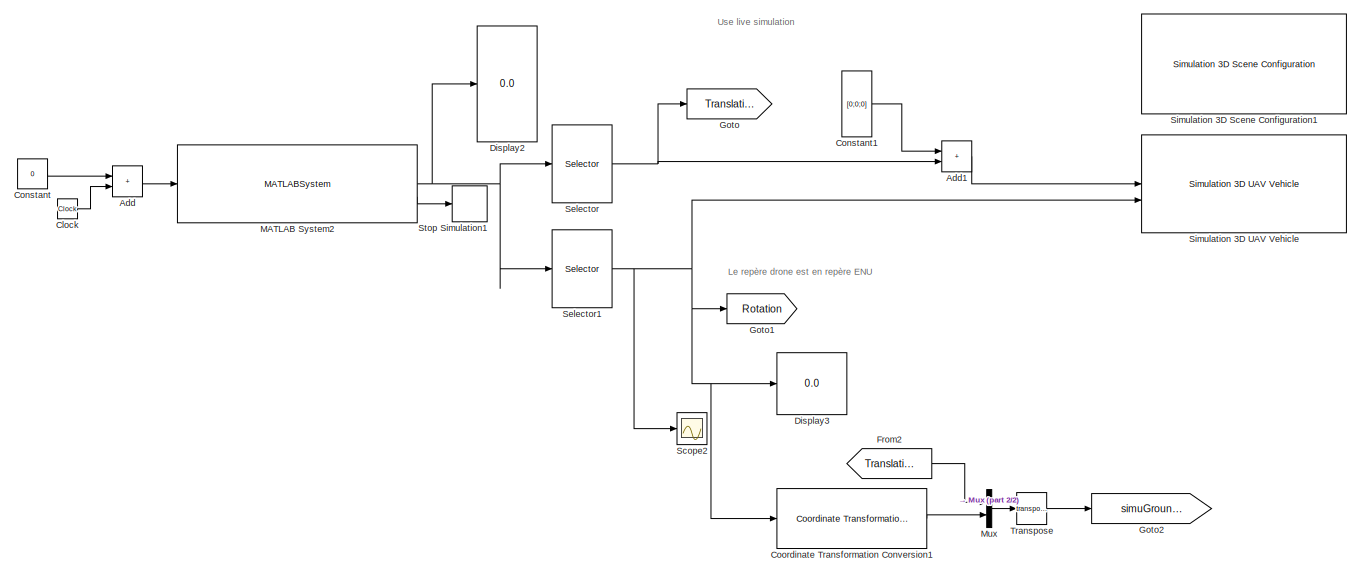
[diagram: root canvas - part 1/2, top left region]
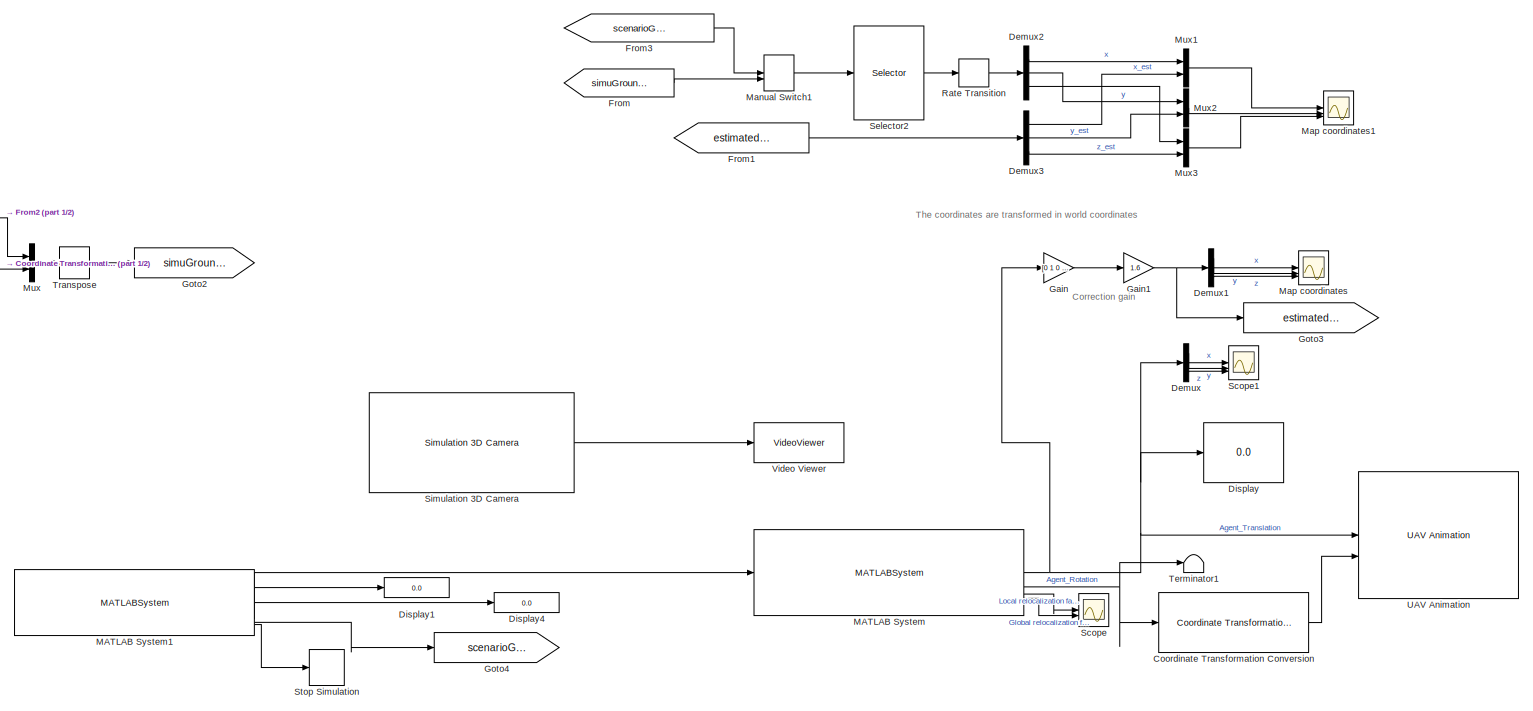
[diagram: root canvas - part 2/2, middle right region]
MODEL slx_98cdd3faee0c
KIND model
CONFIG AbsTol = auto
CONFIG EnableMultiTasking = on
CONFIG FixedStep = 0.05
CONFIG MaxStep = auto
CONFIG MinStep = auto
CONFIG RelTol = 1e-3
CONFIG SampleTimeConstraint = Unconstrained
CONFIG SolverName = VariableStepAuto
CONFIG StartTime = 0.0
CONFIG StopTime = inf
BLOCK [Sum] Add
  Commented = on
  IconShape = rectangular
BLOCK [Sum] Add1
  Commented = on
  IconShape = rectangular
BLOCK [Clock] Clock
  Commented = on
BLOCK [Constant] Constant
  Commented = on
  Value = 0
BLOCK [Constant] Constant1
  Commented = on
  Value = [0;0;0]
  VectorParams1D = off
BLOCK [Reference] Coordinate Transformation Conversion  REF=robotcorelib/Coordinate Transformation Conversion
  LibrarySourceBlock = navlib/Utilities/Coordinate Transformation Conversion
  SourceBlock = robotcorelib/Coordinate Transformation Conversion
  SourceType = robotics.slcore.internal.block.CoordinateTransformationConversion
BLOCK [Reference] Coordinate Transformation Conversion1  REF=robotcorelib/Coordinate Transformation Conversion
  Commented = on
  LibrarySourceBlock = navlib/Utilities/Coordinate Transformation Conversion
  SourceBlock = robotcorelib/Coordinate Transformation Conversion
  SourceType = robotics.slcore.internal.block.CoordinateTransformationConversion
BLOCK [Demux] Demux
  Outputs = 3
BLOCK [Demux] Demux1
  Outputs = 3
BLOCK [Demux] Demux2
  Outputs = 3
BLOCK [Demux] Demux3
  Outputs = 3
BLOCK [Display] Display
  Decimation = 1
BLOCK [Display] Display1
  Decimation = 1
BLOCK [Display] Display2
  Commented = on
  Decimation = 1
BLOCK [Display] Display3
  Commented = on
  Decimation = 1
BLOCK [Display] Display4
  Decimation = 1
BLOCK [From] From
  Commented = on
  GotoTag = simuGroundTruth
BLOCK [From] From1
  GotoTag = estimatedWorldPos
BLOCK [From] From2
  Commented = on
  GotoTag = Translation
BLOCK [From] From3
  GotoTag = scenarioGroundTruth
BLOCK [Gain] Gain
  Gain = [0 1 0 ; 0 0 -1; 1 0 0]
  Multiplication = Matrix(u*K)
BLOCK [Gain] Gain1
  Gain = 1.6
BLOCK [Goto] Goto
  Commented = on
  GotoTag = Translation
BLOCK [Goto] Goto1
  Commented = on
  GotoTag = Rotation
BLOCK [Goto] Goto2
  Commented = on
  GotoTag = simuGroundTruth
BLOCK [Goto] Goto3
  GotoTag = estimatedWorldPos
BLOCK [Goto] Goto4
  GotoTag = scenarioGroundTruth
BLOCK [MATLABSystem] MATLAB System
  FocalLength = [ 1109, 1109 ]
  ImageSize = [ 720, 1280 ]
  MaskDisplay = disp(['Helper' char(10) 'Visual' char(10) 'Localization']);\nport_label('input',1,'Image');\nport_label('output',1,'Agent Pose');\nport_label('output',2,'Agent Rotation');\nport_label('output',3,'Local relocalization fail');\nport_label('output',4,'Global relocalization fail');
  MaskType = Modif_of_HelperVisualLocalizationSystem
  NumLevels = 8
  NumPoints = 1500
  PrincipalPoint = [ 640, 360 ]
  SampleTime = -1
  ScaleFactor = 1.2
  ScenarioName = 8
  ScenariosDirectory = <userpath>\Documents\SEN5\CollaborativeSLAM\Scenarios
  System = Modif_of_HelperVisualLocalizationSystem
  XLim = [ -15, 40 ]
  YLim = [ -10, 5 ]
  ZLim = [ -20, 90 ]
BLOCK [MATLABSystem] MATLAB System1
  ImageSize = [ 720, 1280, 3 ]
  MaskDisplay = disp('ScenarioReader');\nport_label('output',1,'currImg');\nport_label('output',2,'imgIndex');\nport_label('output',3,'timestamp');\nport_label('output',4,'gTruth');\nport_label('output',5,'stopFlag');
  MaskType = ScenarioReader
  ScenarioName = 8
  ScenariosDirectory = <userpath>\Documents\SEN5\CollaborativeSLAM\Scenarios
  SimulateUsing = Interpreted execution
  System = ScenarioReader
BLOCK [MATLABSystem] MATLAB System2
  Commented = on
  MaskDisplay = disp('SmoothBasicWaypointManager');\nport_label('input',1,'time');\nport_label('output',1,'waypoint');\nport_label('output',2,'finished');
  MaskType = SmoothBasicWaypointManager
  ScenarioName = 8
  ScenariosDirectory = <userpath>\Documents\SEN5\CollaborativeSLAM\Scenarios
  SimulateUsing = Interpreted execution
  StepTime = 0.01
  System = SmoothBasicWaypointManager
BLOCK [ManualSwitch] Manual Switch1
BLOCK [Scope] Map coordinates
  Floating = off
  NumInputPorts = 3
  ScopeSpecificationString = Simulink.scopes.TimeScopeBlockCfg('CurrentConfiguration', extmgr.ConfigurationSet(extmgr.Configuration('Core','General UI',true),extmgr.Configuration('Core','Source UI',true),extmgr.Configuration('Sources','WiredSimulink',true,'DataLoggingVariableName','ScopeData1'),extmgr.Configuration('Visuals','Time Domain',true,'SerializedDisplays',{struct('MinYLimReal','-0.60459','MaxYLimReal','0.20592','YLab...<+3019ch>
BLOCK [Scope] Map coordinates1
  Floating = off
  NumInputPorts = 3
  ScopeSpecificationString = Simulink.scopes.TimeScopeBlockCfg('CurrentConfiguration', extmgr.ConfigurationSet(extmgr.Configuration('Core','General UI',true,'FigureColor',[1 1 1]),extmgr.Configuration('Core','Source UI',true),extmgr.Configuration('Sources','WiredSimulink',true,'DataLoggingVariableName','ScopeData2'),extmgr.Configuration('Visuals','Time Domain',true,'SerializedDisplays',{struct('MinYLimReal','-11.86375','MaxYL...<+3582ch>
BLOCK [Mux] Mux
  Commented = on
  DisplayOption = bar
  Inputs = 2
BLOCK [Mux] Mux1
  DisplayOption = bar
  Inputs = 2
BLOCK [Mux] Mux2
  DisplayOption = bar
  Inputs = 2
BLOCK [Mux] Mux3
  DisplayOption = bar
  Inputs = 2
BLOCK [RateTransition] Rate Transition
BLOCK [Scope] Scope
  Floating = off
  NumInputPorts = 2
  ScopeSpecificationString = Simulink.scopes.TimeScopeBlockCfg('CurrentConfiguration', extmgr.ConfigurationSet(extmgr.Configuration('Core','General UI',true),extmgr.Configuration('Core','Source UI',true),extmgr.Configuration('Sources','WiredSimulink',true),extmgr.Configuration('Visuals','Time Domain',true,'SerializedDisplays',{struct('MinYLimReal','-1.00000','MaxYLimReal','1.00000','YLabelReal','','MinYLimMag','0.00000','MaxY...<+1532ch>
BLOCK [Scope] Scope1
  Floating = off
  NumInputPorts = 3
  ScopeSpecificationString = Simulink.scopes.TimeScopeBlockCfg('CurrentConfiguration', extmgr.ConfigurationSet(extmgr.Configuration('Core','General UI',true),extmgr.Configuration('Core','Source UI',true),extmgr.Configuration('Sources','WiredSimulink',true,'DataLoggingVariableName','ScopeData1'),extmgr.Configuration('Visuals','Time Domain',true,'SerializedDisplays',{struct('MinYLimReal','-0.60459','MaxYLimReal','0.20592','YLab...<+3019ch>
BLOCK [Scope] Scope2
  Commented = on
  Floating = off
  NumInputPorts = 1
  ScopeSpecificationString = Simulink.scopes.TimeScopeBlockCfg('CurrentConfiguration', extmgr.ConfigurationSet(extmgr.Configuration('Core','General UI',true),extmgr.Configuration('Core','Source UI',true),extmgr.Configuration('Sources','WiredSimulink',true,'DataLoggingVariableName','ScopeData1'),extmgr.Configuration('Visuals','Time Domain',true,'SerializedDisplays',{struct('MinYLimReal','-22.97466','MaxYLimReal','26.11469','YL...<+1522ch>
BLOCK [Selector] Selector
  Commented = on
  IndexOptions = Index vector (dialog)
  Indices = [1 2 3]
  InputPortWidth = 6
  OutputSizes = 1
BLOCK [Selector] Selector1
  Commented = on
  IndexOptions = Index vector (dialog)
  Indices = [4 5 6]
  InputPortWidth = 6
  OutputSizes = 1
BLOCK [Selector] Selector2
  IndexOptions = Index vector (dialog)
  Indices = [1 2 3]
  InputPortWidth = 7
  OutputSizes = 1
BLOCK [Reference] Simulation 3D Camera  REF=sim3dcameralib/Simulation 3D Camera
  Commented = on
  LibrarySourceBlock = drivingsim3d/Simulation 3D Camera
  Priority = 1
  SourceBlock = sim3dcameralib/Simulation 3D Camera
  SourceType = Simulation 3D Camera
BLOCK [Reference] Simulation 3D Scene Configuration1  REF=sim3dlib/Simulation 3D Scene Configuration
  Commented = on
  LibrarySourceBlock = uavsim3dlib/Simulation 3D Scene Configuration
  Priority = 0
  SourceBlock = sim3dlib/Simulation 3D Scene Configuration
  SourceType = Simulation 3D Scene Configuration
BLOCK [Reference] Simulation 3D UAV Vehicle  REF=uavsim3dlib/Simulation 3D UAV Vehicle
  Commented = on
  Priority = -1
  SourceBlock = uavsim3dlib/Simulation 3D UAV Vehicle
  SourceType = Simulation 3D UAV Vehicle
BLOCK [Stop] Stop Simulation
BLOCK [Stop] Stop Simulation1
  Commented = on
BLOCK [Terminator] Terminator1
BLOCK [Math] Transpose
  Commented = on
  Operator = transpose
BLOCK [Reference] UAV Animation  REF=uavutilslib/UAV Animation
  SourceBlock = uavutilslib/UAV Animation
  SourceType = uav.sluav.internal.system.UAVAnimation
BLOCK [VideoViewer] Video Viewer
  Commented = on
  FigPos = [919 981 958 565]
  ScopeSpecificationString = vipscopes.VideoViewerScopeCfg('CurrentConfiguration', extmgr.ConfigurationSet(extmgr.Configuration('Core','General UI',true),extmgr.Configuration('Core','Source UI',true),extmgr.Configuration('Sources','WiredSimulink',true),extmgr.Configuration('Visuals','Video',true),extmgr.Configuration('Tools','Image Navigation Tools',true,'Magnification',0.706692396555346),extmgr.Configuration('Tools','Image T...<+108ch>
  colormapValue = gray(256)
ANNOTATION (root): Correction gain
ANNOTATION (root): Le repère drone est en repère ENU
ANNOTATION (root): The coordinates are transformed in world coordinates
ANNOTATION (root): Use live simulation
LINE Add1:1 -> Simulation 3D UAV Vehicle:1
LINE Add:1 -> MATLAB System2:1
LINE Clock:1 -> Add:2
LINE Constant1:1 -> Add1:1
LINE Constant:1 -> Add:1
LINE Coordinate Transformation Conversion1:1 -> Mux:2
LINE Coordinate Transformation Conversion:1 -> UAV Animation:2
LINE Demux1:1 -> Map coordinates:1
LINE Demux1:2 -> Map coordinates:2
LINE Demux1:3 -> Map coordinates:3
LINE Demux2:1 -> Mux1:1
LINE Demux2:2 -> Mux2:1
LINE Demux2:3 -> Mux3:1
LINE Demux3:1 -> Mux1:2
LINE Demux3:2 -> Mux2:2
LINE Demux3:3 -> Mux3:2
LINE Demux:1 -> Scope1:1
LINE Demux:2 -> Scope1:2
LINE Demux:3 -> Scope1:3
LINE From1:1 -> Demux3:1
LINE From2:1 -> Mux:1
LINE From3:1 -> Manual Switch1:1
LINE From:1 -> Manual Switch1:2
NET Gain1:1 -> Demux1:1, Goto3:1
LINE Gain:1 -> Gain1:1
LINE MATLAB System1:1 -> MATLAB System:1
LINE MATLAB System1:2 -> Display1:1
LINE MATLAB System1:3 -> Display4:1
LINE MATLAB System1:4 -> Goto4:1
LINE MATLAB System1:5 -> Stop Simulation:1
NET MATLAB System2:1 -> Display2:1, Selector1:1, Selector:1
LINE MATLAB System2:2 -> Stop Simulation1:1
NET MATLAB System:1 -> Demux:1, Display:1, Gain:1, UAV Animation:1
NET MATLAB System:2 -> Coordinate Transformation Conversion:1, Terminator1:1
LINE MATLAB System:3 -> Scope:1
LINE MATLAB System:4 -> Scope:2
LINE Manual Switch1:1 -> Selector2:1
LINE Mux1:1 -> Map coordinates1:1
LINE Mux2:1 -> Map coordinates1:2
LINE Mux3:1 -> Map coordinates1:3
LINE Mux:1 -> Transpose:1
LINE Rate Transition:1 -> Demux2:1
NET Selector1:1 -> Coordinate Transformation Conversion1:1, Display3:1, Goto1:1, Scope2:1, Simulation 3D UAV Vehicle:2
LINE Selector2:1 -> Rate Transition:1
NET Selector:1 -> Add1:2, Goto:1
LINE Simulation 3D Camera:1 -> Video Viewer:1
LINE Transpose:1 -> Goto2:1
note: NET lines group one-source signal fan-out (src -> all destinations, sorted); 1:1 wires keep LINE
